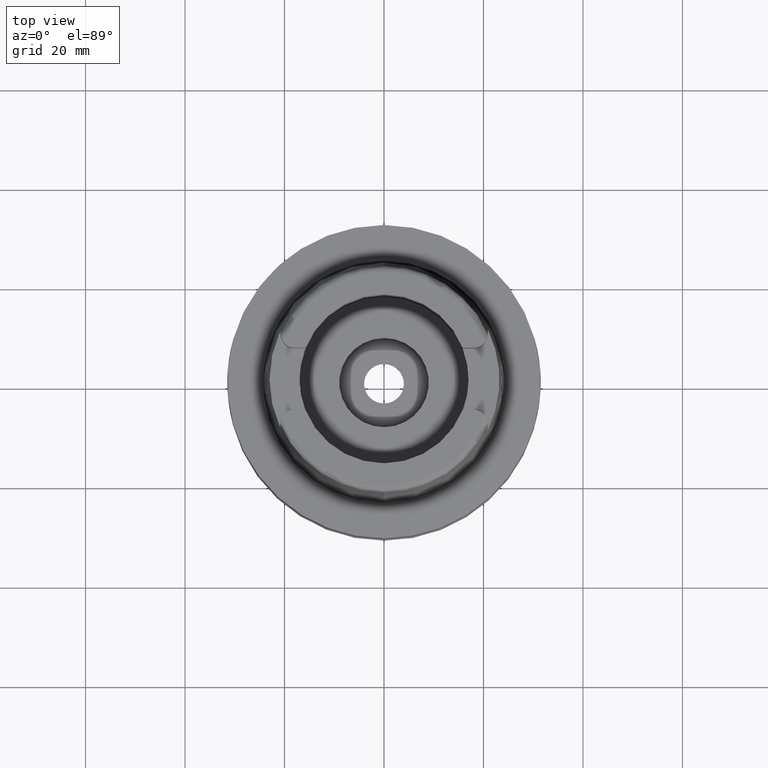
[diagram: clean part render]
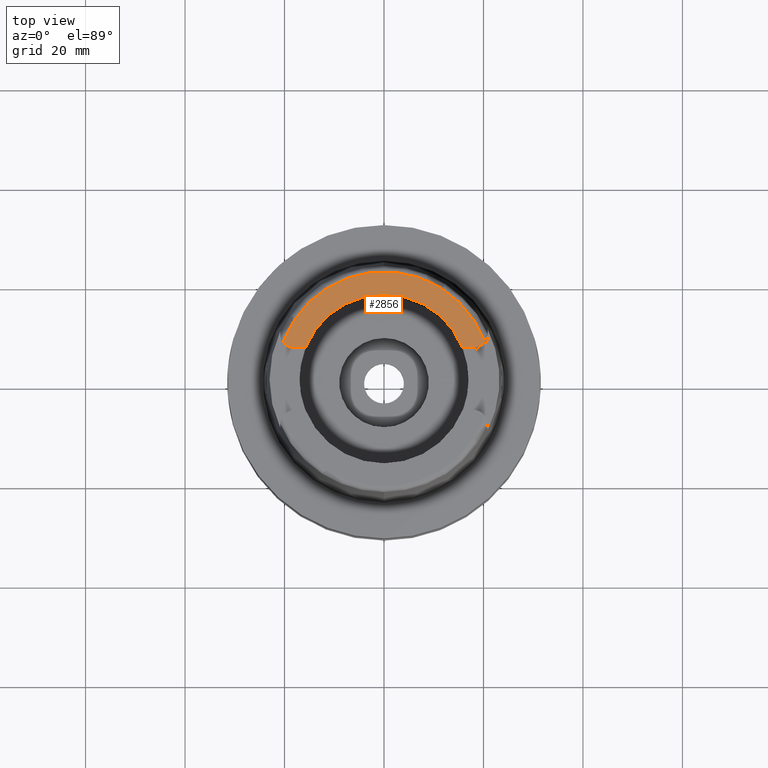
[diagram: same view with one face highlighted and labeled with its STEP entity id]
A machine part, top view. The second image highlights one B-rep face of the part: STEP entity #2856.
In plain terms, the highlighted planar face has unit normal (0, 0, 1).
Its self-contained STEP definition (entity closure, byte-faithful):
#409=DIRECTION('',(1.E0,-8.522579531193E-14,0.E0));
#410=VECTOR('',#409,2.188509563969E0);
#411=CARTESIAN_POINT('',(1.580149043603E1,6.27E0,3.2E1));
#412=LINE('',#411,#410);
#416=CARTESIAN_POINT('',(-1.799E1,9.15E0,3.2E1));
#417=DIRECTION('',(0.E0,0.E0,-1.E0));
#418=DIRECTION('',(0.E0,-1.E0,0.E0));
#419=AXIS2_PLACEMENT_3D('',#416,#417,#418);
#424=CARTESIAN_POINT('',(0.E0,0.E0,3.2E1));
#425=DIRECTION('',(0.E0,0.E0,-1.E0));
#426=DIRECTION('',(-9.395199128801E-1,3.424942821446E-1,0.E0));
#427=AXIS2_PLACEMENT_3D('',#424,#425,#426);
#432=CARTESIAN_POINT('',(1.799E1,9.15E0,3.2E1));
#433=DIRECTION('',(0.E0,0.E0,-1.E0));
#434=DIRECTION('',(7.912216523764E-1,-6.115294733787E-1,0.E0));
#435=AXIS2_PLACEMENT_3D('',#432,#433,#434);
#440=CARTESIAN_POINT('',(0.E0,0.E0,3.2E1));
#441=DIRECTION('',(0.E0,0.E0,1.E0));
#442=DIRECTION('',(9.294994374136E-1,3.688235294118E-1,0.E0));
#443=AXIS2_PLACEMENT_3D('',#440,#441,#442);
#448=CARTESIAN_POINT('',(0.E0,0.E0,3.2E1));
#449=DIRECTION('',(0.E0,0.E0,1.E0));
#450=DIRECTION('',(0.E0,1.E0,0.E0));
#451=AXIS2_PLACEMENT_3D('',#448,#449,#450);
#456=DIRECTION('',(1.E0,8.644330667353E-14,0.E0));
#457=VECTOR('',#456,2.188509563969E0);
#458=CARTESIAN_POINT('',(-1.799E1,6.27E0,3.2E1));
#459=LINE('',#458,#457);
#2265=CARTESIAN_POINT('',(-1.580149043603E1,6.27E0,3.2E1));
#2266=VERTEX_POINT('',#2265);
#2267=CARTESIAN_POINT('',(0.E0,1.7E1,3.2E1));
#2268=VERTEX_POINT('',#2267);
#2291=CARTESIAN_POINT('',(-1.799E1,6.27E0,3.2E1));
#2292=VERTEX_POINT('',#2291);
#2293=CARTESIAN_POINT('',(-2.026871835884E1,7.388795116670E0,3.2E1));
#2294=VERTEX_POINT('',#2293);
#2295=CARTESIAN_POINT('',(2.026871835884E1,7.388795116669E0,3.2E1));
#2296=VERTEX_POINT('',#2295);
#2297=CARTESIAN_POINT('',(1.799E1,6.27E0,3.2E1));
#2298=VERTEX_POINT('',#2297);
#2299=CARTESIAN_POINT('',(1.580149043603E1,6.27E0,3.2E1));
#2300=VERTEX_POINT('',#2299);
#2838=CARTESIAN_POINT('',(0.E0,0.E0,3.2E1));
#2839=DIRECTION('',(0.E0,0.E0,1.E0));
#2840=DIRECTION('',(0.E0,1.E0,0.E0));
#2841=AXIS2_PLACEMENT_3D('',#2838,#2839,#2840);
#2842=PLANE('',#2841);
#2844=ORIENTED_EDGE('',*,*,#2843,.F.);
#2846=ORIENTED_EDGE('',*,*,#2845,.T.);
#2848=ORIENTED_EDGE('',*,*,#2847,.T.);
#2850=ORIENTED_EDGE('',*,*,#2849,.T.);
#2851=ORIENTED_EDGE('',*,*,#2829,.F.);
#2852=ORIENTED_EDGE('',*,*,#2796,.T.);
#2853=ORIENTED_EDGE('',*,*,#2601,.T.);
#2854=EDGE_LOOP('',(#2844,#2846,#2848,#2850,#2851,#2852,#2853));
#2855=FACE_OUTER_BOUND('',#2854,.F.);
#420=CIRCLE('',#419,2.88E0);
#428=CIRCLE('',#427,2.157348458609E1);
#436=CIRCLE('',#435,2.88E0);
#444=CIRCLE('',#443,1.7E1);
#452=CIRCLE('',#451,1.7E1);
#2601=EDGE_CURVE('',#2268,#2266,#452,.T.);
#2796=EDGE_CURVE('',#2300,#2268,#444,.T.);
#2829=EDGE_CURVE('',#2300,#2298,#412,.T.);
#2843=EDGE_CURVE('',#2292,#2266,#459,.T.);
#2845=EDGE_CURVE('',#2292,#2294,#420,.T.);
#2847=EDGE_CURVE('',#2294,#2296,#428,.T.);
#2849=EDGE_CURVE('',#2296,#2298,#436,.T.);
#2856=ADVANCED_FACE('',(#2855),#2842,.T.);